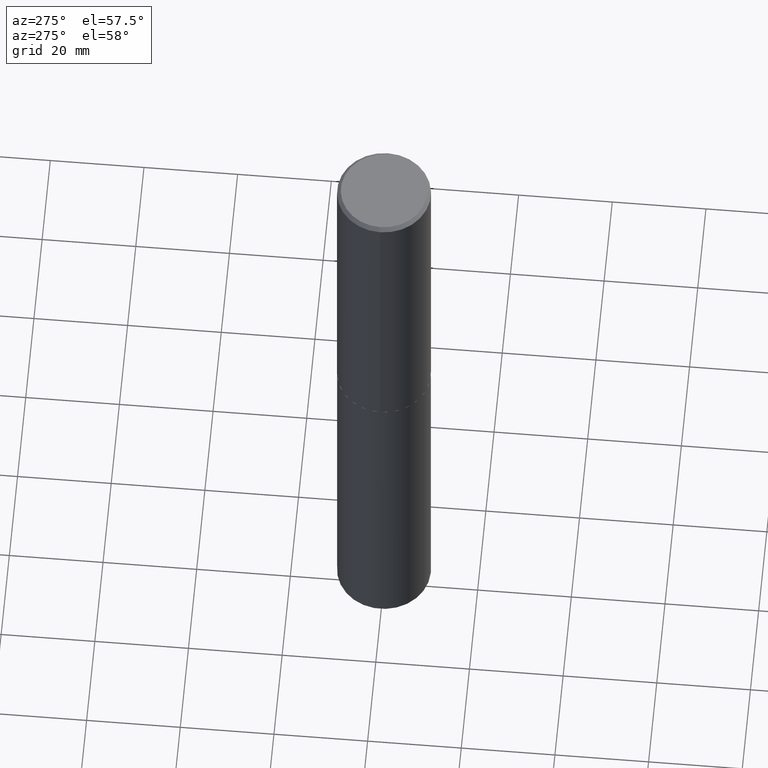
[diagram: clean part render]
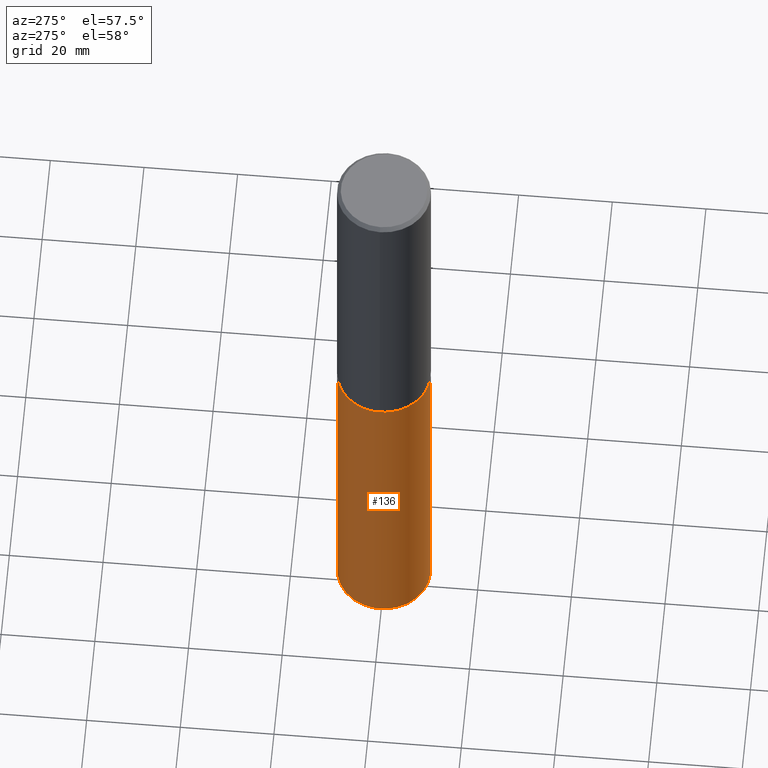
[diagram: same view with one face highlighted and labeled with its STEP entity id]
A machine part, auxiliary view. The second image highlights one B-rep face of the part: STEP entity #136.
In plain terms, the highlighted cylindrical surface (partial cylindrical patch) has radius 10 mm, axis along (-0, 0, 1).
Its self-contained STEP definition (entity closure, byte-faithful):
#12 = DIRECTION ( 'NONE',  ( -6.982962677686265133E-15, -1.000000000000000000, 2.775563112689116301E-15 ) ) ;
#28 = AXIS2_PLACEMENT_3D ( 'NONE', #130, #52, #290 ) ;
#43 = ORIENTED_EDGE ( 'NONE', *, *, #210, .F. ) ;
#51 = EDGE_LOOP ( 'NONE', ( #43, #123, #226, #340 ) ) ;
#52 = DIRECTION ( 'NONE',  ( -2.444960396146817416E-29, 3.492209410954920967E-15, 1.000000000000000000 ) ) ;
#59 = CIRCLE ( 'NONE', #386, 0.3937000000000000499 ) ;
#62 = LINE ( 'NONE', #116, #336 ) ;
#64 = DIRECTION ( 'NONE',  ( -2.444960396146817416E-29, 3.492209410954920967E-15, 1.000000000000000000 ) ) ;
#88 = DIRECTION ( 'NONE',  ( -2.444960396146817135E-29, 3.492209410954921361E-15, 1.000000000000000000 ) ) ;
#90 = LINE ( 'NONE', #264, #351 ) ;
#98 = CARTESIAN_POINT ( 'NONE',  ( -2.749192406205013402E-15, -0.3937000000000099309, -2.834599999999997788 ) ) ;
#113 = EDGE_CURVE ( 'NONE', #160, #338, #191, .T. ) ;
#116 = CARTESIAN_POINT ( 'NONE',  ( -2.749192406205013402E-15, -0.3937000000000099309, -2.834599999999997788 ) ) ;
#120 = DIRECTION ( 'NONE',  ( -2.444960396146817416E-29, 3.492209410954920967E-15, 1.000000000000000000 ) ) ;
#123 = ORIENTED_EDGE ( 'NONE', *, *, #369, .T. ) ;
#130 = CARTESIAN_POINT ( 'NONE',  ( 6.931925878012386396E-29, -9.896953003084777729E-15, -2.834599999999999120 ) ) ;
#136 = ADVANCED_FACE ( 'NONE', ( #143 ), #211, .T. ) ;
#143 = FACE_OUTER_BOUND ( 'NONE', #51, .T. ) ;
#160 = VERTEX_POINT ( 'NONE', #355 ) ;
#180 = CARTESIAN_POINT ( 'NONE',  ( -2.749192406204939249E-15, -0.3937000000000207001, -5.899466866818344535 ) ) ;
#191 = CIRCLE ( 'NONE', #28, 0.3937000000000000499 ) ;
#206 = AXIS2_PLACEMENT_3D ( 'NONE', #242, #120, #295 ) ;
#208 = DIRECTION ( 'NONE',  ( -2.444960396146817135E-29, 3.492209410954921361E-15, 1.000000000000000000 ) ) ;
#210 = EDGE_CURVE ( 'NONE', #305, #160, #90, .T. ) ;
#211 = CYLINDRICAL_SURFACE ( 'NONE', #206, 0.3937000000000000499 ) ;
#226 = ORIENTED_EDGE ( 'NONE', *, *, #239, .T. ) ;
#239 = EDGE_CURVE ( 'NONE', #258, #338, #62, .T. ) ;
#242 = CARTESIAN_POINT ( 'NONE',  ( 6.931925878012386396E-29, -9.896953003084777729E-15, -2.834599999999999120 ) ) ;
#258 = VERTEX_POINT ( 'NONE', #180 ) ;
#264 = CARTESIAN_POINT ( 'NONE',  ( 2.797406750687583417E-15, 0.3936999999999901134, -2.834600000000000897 ) ) ;
#269 = CARTESIAN_POINT ( 'NONE',  ( 1.442540398684582544E-28, -2.060010991871172801E-14, -5.899466866818345423 ) ) ;
#290 = DIRECTION ( 'NONE',  ( -6.982962677686265133E-15, -1.000000000000000000, 4.163344669033674845E-15 ) ) ;
#295 = DIRECTION ( 'NONE',  ( -6.982962677686265133E-15, -1.000000000000000000, 4.163344669033674845E-15 ) ) ;
#305 = VERTEX_POINT ( 'NONE', #341 ) ;
#336 = VECTOR ( 'NONE', #88, 39.37007874015748143 ) ;
#338 = VERTEX_POINT ( 'NONE', #98 ) ;
#340 = ORIENTED_EDGE ( 'NONE', *, *, #113, .F. ) ;
#341 = CARTESIAN_POINT ( 'NONE',  ( 2.797406750687658754E-15, 0.3936999999999794553, -5.899466866818346311 ) ) ;
#351 = VECTOR ( 'NONE', #208, 39.37007874015748143 ) ;
#355 = CARTESIAN_POINT ( 'NONE',  ( 2.797406750687658754E-15, 0.3936999999999901134, -2.834600000000000897 ) ) ;
#369 = EDGE_CURVE ( 'NONE', #305, #258, #59, .T. ) ;
#386 = AXIS2_PLACEMENT_3D ( 'NONE', #269, #64, #12 ) ;